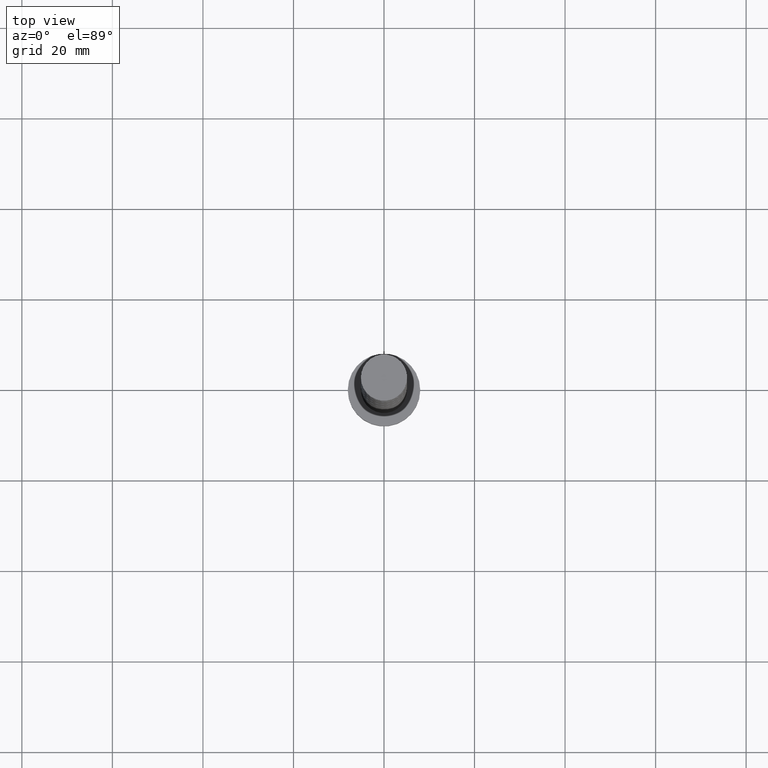
[diagram: clean part render]
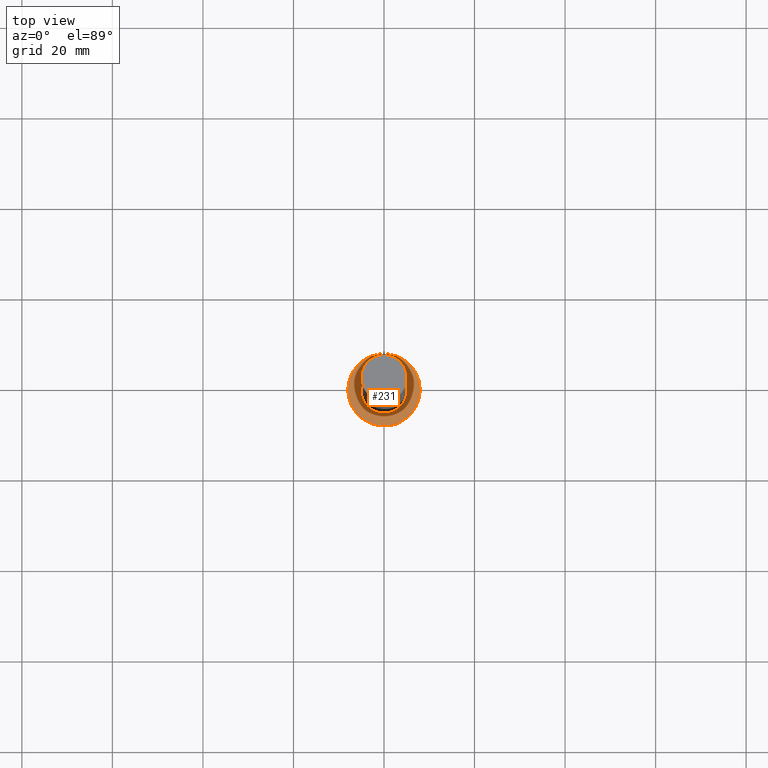
[diagram: same view with one face highlighted and labeled with its STEP entity id]
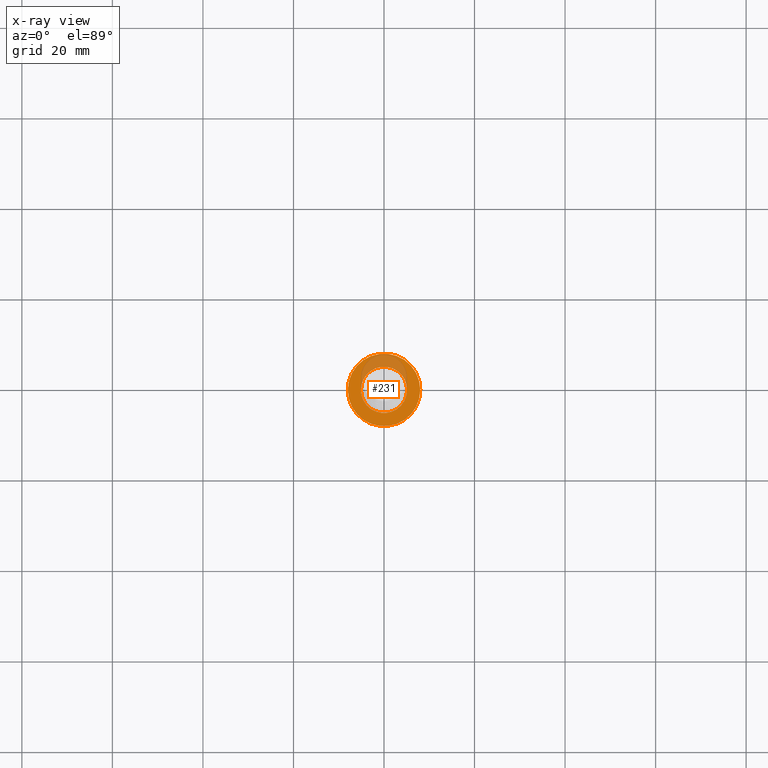
[diagram: x-ray of the same camera — body ghosted, the highlighted face saturated]
A machine part, top view. The second image highlights one B-rep face of the part: STEP entity #231.
The next image is the same camera in x-ray: the body ghosted, the highlighted face saturated — about 23% of this face is hidden behind the body in this view.
In plain terms, the highlighted planar face has unit normal (0, 0, 1).
Its self-contained STEP definition (entity closure, byte-faithful):
#30 = FACE_BOUND ( 'NONE', #1039, .T. ) ;
#63 = EDGE_CURVE ( 'NONE', #1562, #127, #309, .T. ) ;
#127 = VERTEX_POINT ( 'NONE', #1523 ) ;
#148 = DIRECTION ( 'NONE',  ( 1.000000000000000000, 0.000000000000000000, 0.000000000000000000 ) ) ;
#152 = CIRCLE ( 'NONE', #1286, 5.099999999999999645 ) ;
#156 = CARTESIAN_POINT ( 'NONE',  ( -5.099999999999999645, 0.000000000000000000, 5.000000000000000000 ) ) ;
#161 = EDGE_CURVE ( 'NONE', #888, #1270, #152, .T. ) ;
#172 = EDGE_CURVE ( 'NONE', #1270, #888, #206, .T. ) ;
#177 = ORIENTED_EDGE ( 'NONE', *, *, #707, .T. ) ;
#206 = CIRCLE ( 'NONE', #1337, 5.099999999999999645 ) ;
#221 = DIRECTION ( 'NONE',  ( 1.000000000000000000, 0.000000000000000000, 0.000000000000000000 ) ) ;
#231 = ADVANCED_FACE ( 'NONE', ( #30, #1044 ), #1029, .T. ) ;
#252 = EDGE_LOOP ( 'NONE', ( #1638, #177 ) ) ;
#309 = CIRCLE ( 'NONE', #949, 8.000000000000000000 ) ;
#382 = DIRECTION ( 'NONE',  ( 1.000000000000000000, 0.000000000000000000, 0.000000000000000000 ) ) ;
#413 = DIRECTION ( 'NONE',  ( 1.000000000000000000, 0.000000000000000000, -0.000000000000000000 ) ) ;
#448 = DIRECTION ( 'NONE',  ( 0.000000000000000000, 0.000000000000000000, 1.000000000000000000 ) ) ;
#507 = CARTESIAN_POINT ( 'NONE',  ( 0.000000000000000000, 0.000000000000000000, 5.000000000000000000 ) ) ;
#707 = EDGE_CURVE ( 'NONE', #127, #1562, #1607, .T. ) ;
#809 = CARTESIAN_POINT ( 'NONE',  ( 0.000000000000000000, 0.000000000000000000, 5.000000000000000000 ) ) ;
#888 = VERTEX_POINT ( 'NONE', #1199 ) ;
#920 = ORIENTED_EDGE ( 'NONE', *, *, #172, .F. ) ;
#949 = AXIS2_PLACEMENT_3D ( 'NONE', #954, #448, #1246 ) ;
#954 = CARTESIAN_POINT ( 'NONE',  ( 0.000000000000000000, 0.000000000000000000, 5.000000000000000000 ) ) ;
#964 = CARTESIAN_POINT ( 'NONE',  ( 0.000000000000000000, 0.000000000000000000, 5.000000000000000000 ) ) ;
#1029 = PLANE ( 'NONE',  #1419 ) ;
#1039 = EDGE_LOOP ( 'NONE', ( #920, #1113 ) ) ;
#1044 = FACE_OUTER_BOUND ( 'NONE', #252, .T. ) ;
#1113 = ORIENTED_EDGE ( 'NONE', *, *, #161, .F. ) ;
#1180 = DIRECTION ( 'NONE',  ( 0.000000000000000000, 0.000000000000000000, 1.000000000000000000 ) ) ;
#1199 = CARTESIAN_POINT ( 'NONE',  ( 5.099999999999999645, 6.245698675651500839E-16, 5.000000000000000000 ) ) ;
#1218 = AXIS2_PLACEMENT_3D ( 'NONE', #964, #1338, #221 ) ;
#1246 = DIRECTION ( 'NONE',  ( 1.000000000000000000, 0.000000000000000000, 0.000000000000000000 ) ) ;
#1260 = DIRECTION ( 'NONE',  ( 0.000000000000000000, 0.000000000000000000, 1.000000000000000000 ) ) ;
#1270 = VERTEX_POINT ( 'NONE', #156 ) ;
#1286 = AXIS2_PLACEMENT_3D ( 'NONE', #1408, #1260, #148 ) ;
#1337 = AXIS2_PLACEMENT_3D ( 'NONE', #507, #1532, #382 ) ;
#1338 = DIRECTION ( 'NONE',  ( 0.000000000000000000, 0.000000000000000000, 1.000000000000000000 ) ) ;
#1408 = CARTESIAN_POINT ( 'NONE',  ( 0.000000000000000000, 0.000000000000000000, 5.000000000000000000 ) ) ;
#1419 = AXIS2_PLACEMENT_3D ( 'NONE', #809, #1180, #413 ) ;
#1523 = CARTESIAN_POINT ( 'NONE',  ( 8.000000000000000000, 9.797174393178825657E-16, 5.000000000000000000 ) ) ;
#1532 = DIRECTION ( 'NONE',  ( 0.000000000000000000, 0.000000000000000000, 1.000000000000000000 ) ) ;
#1562 = VERTEX_POINT ( 'NONE', #1622 ) ;
#1607 = CIRCLE ( 'NONE', #1218, 8.000000000000000000 ) ;
#1622 = CARTESIAN_POINT ( 'NONE',  ( -8.000000000000000000, 0.000000000000000000, 5.000000000000000000 ) ) ;
#1638 = ORIENTED_EDGE ( 'NONE', *, *, #63, .T. ) ;